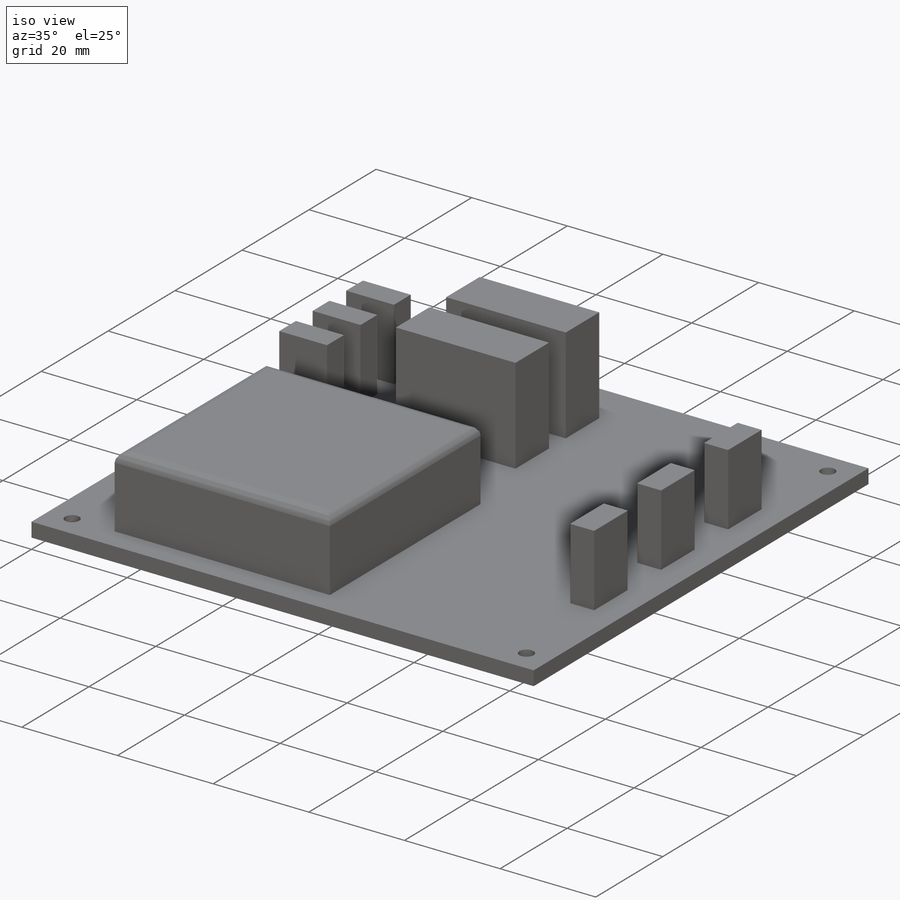
[diagram: iso view]
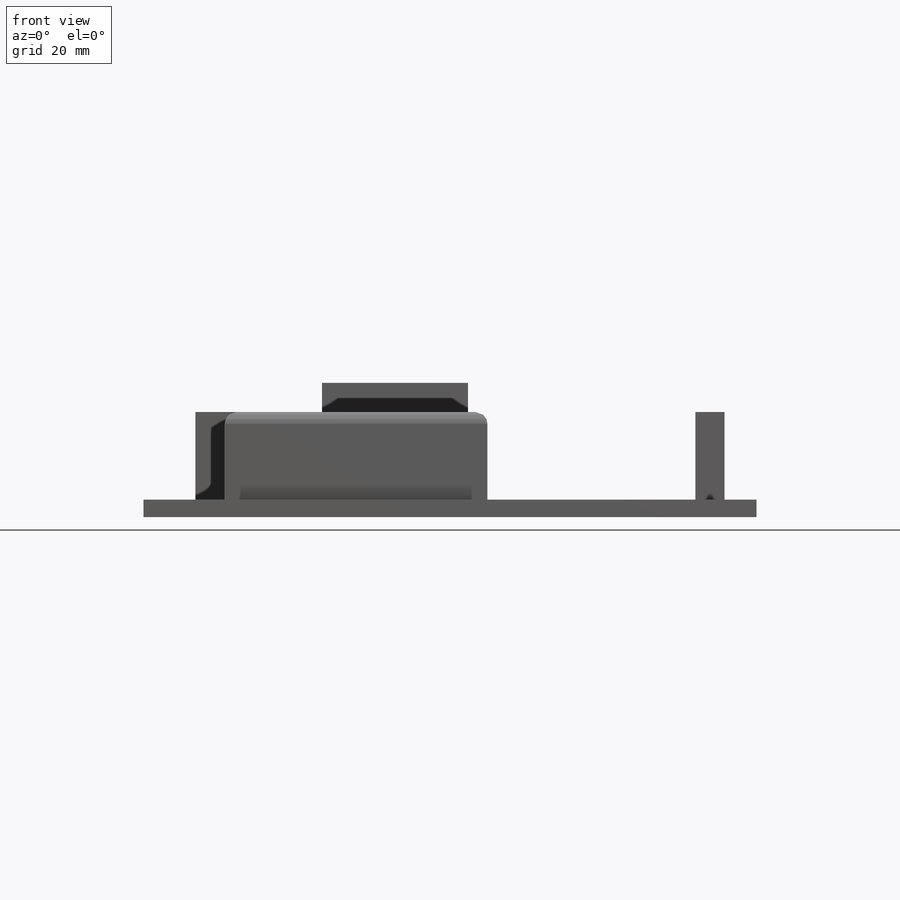
[diagram: front view]
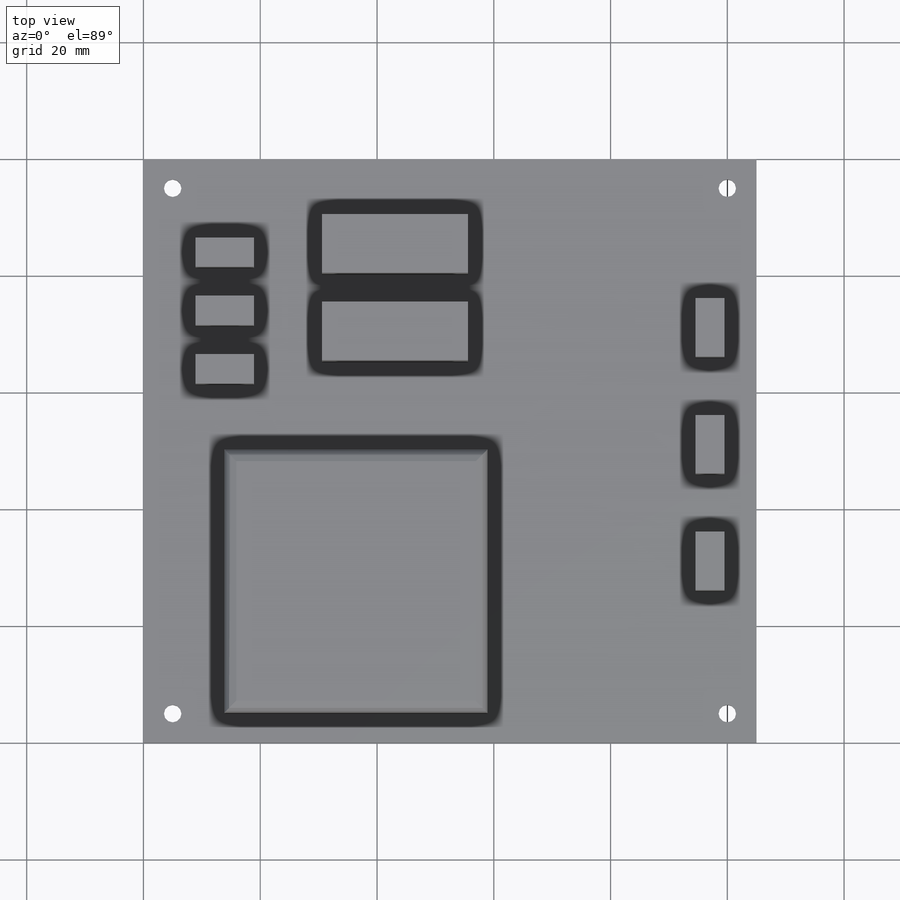
[diagram: top view]
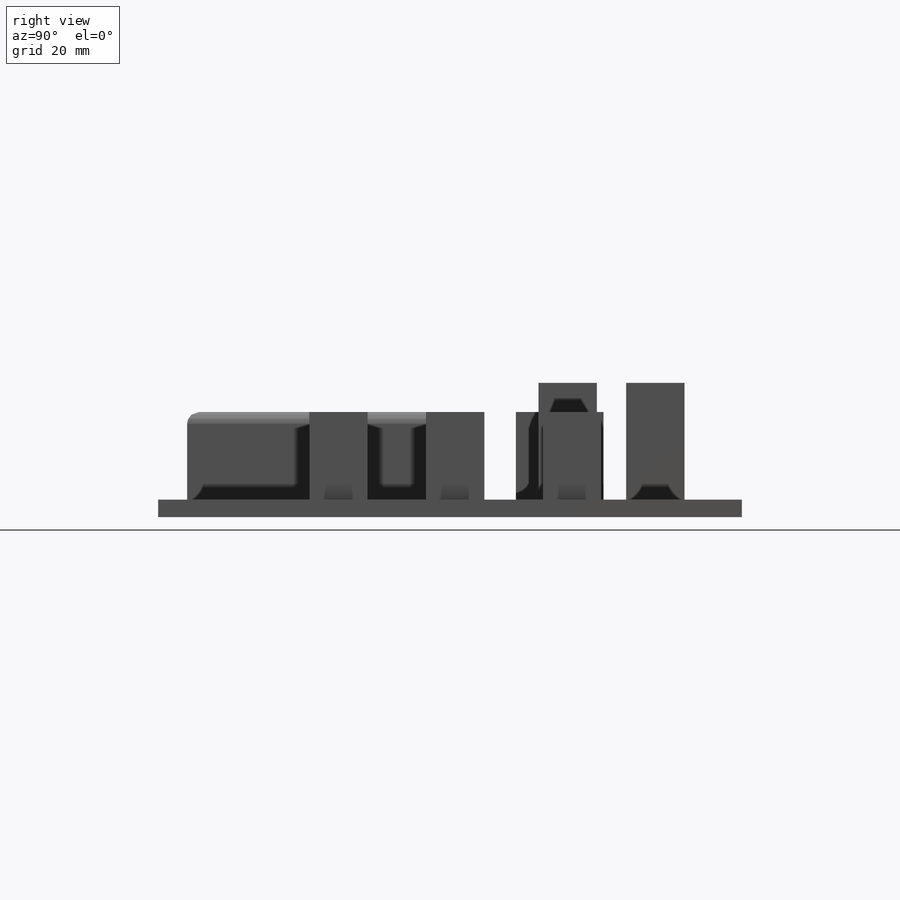
[diagram: right view]
SOLIDWORKS PART (.sldprt)
format: sldprt  version: not decoded by parser v0  size: 230,400 bytes
history: native  units: mm
features: sketch x4, extrude x4, plane x3, material x1, fillet x1 (+9 scaffold rows collapsed)
feature tree (22):
  scaffold x9  (default folders/planes/origin — collapsed)
  material  "Matériau <non spécifié>"
  plane  "Face"
  plane  "Dessus"
  plane  "Droite"
  sketch  "Esquisse1"  dims[D3=3.0mm D1=105.0mm D2=100.0mm D4=5.0mm D5=5.0mm]
  extrude  "Extrusion1"  Depth=3mm
  sketch  "Esquisse2"  dims[D1=45.0mm D2=10.0mm]
  extrude  "Extrusion2"  Depth=15mm
  fillet  "Congé1"  Radius=2mm
  sketch  "Esquisse3"  dims[c1.D1=5.0mm c1.D2=10.0mm c1.D3=5.0mm c1.D4=5.0mm c1.D5=10.0mm c1.D6=5.0mm c1.D7=10.0mm c1.D8=5.0mm c2.D7=10.0mm c2.D8=5.0mm c3.D7=10.0mm c3.D8=10.0mm]
  extrude  "Extrusion3"  Depth=15mm
  sketch  "Esquisse4"  dims[D1=10.0mm D2=25.0mm D3=5.0mm]
  extrude  "Extrusion4"  Depth=20mm
decode coverage: 9 of 9 modeling features carry decoded parameters
note: suppression state not decoded; provenance and decode notes live in map.json
